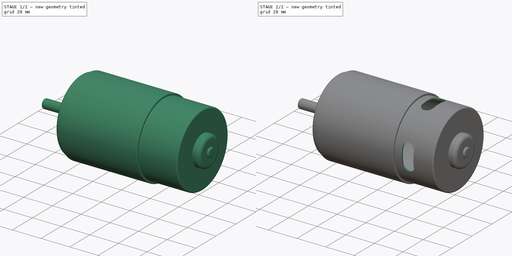
[diagram: build sequence overview — one tinted view per stage of 2, left to right]
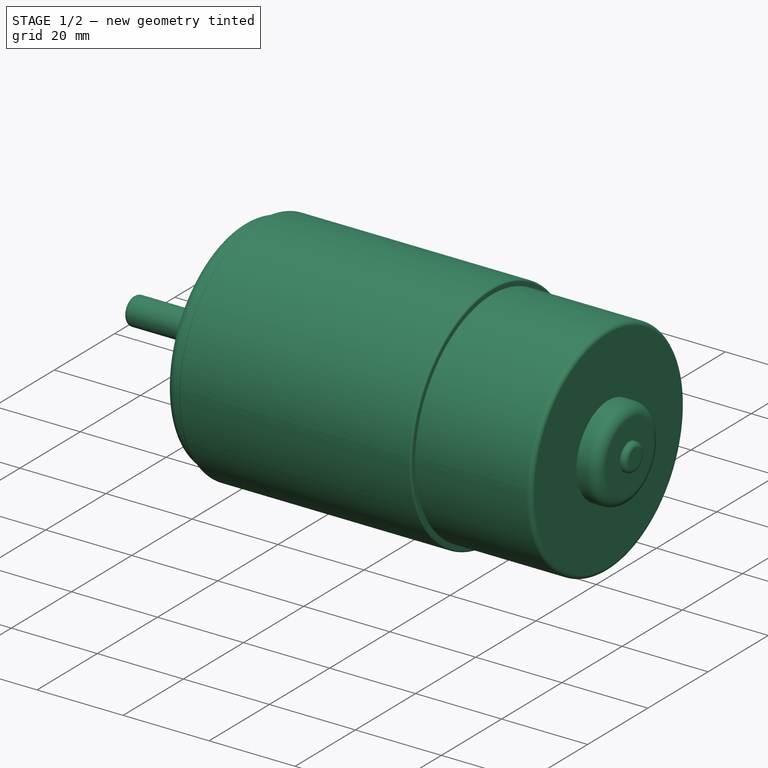
[diagram: stage 1 of 2 — iso view after this stage's code; geometry added in this stage tinted green]
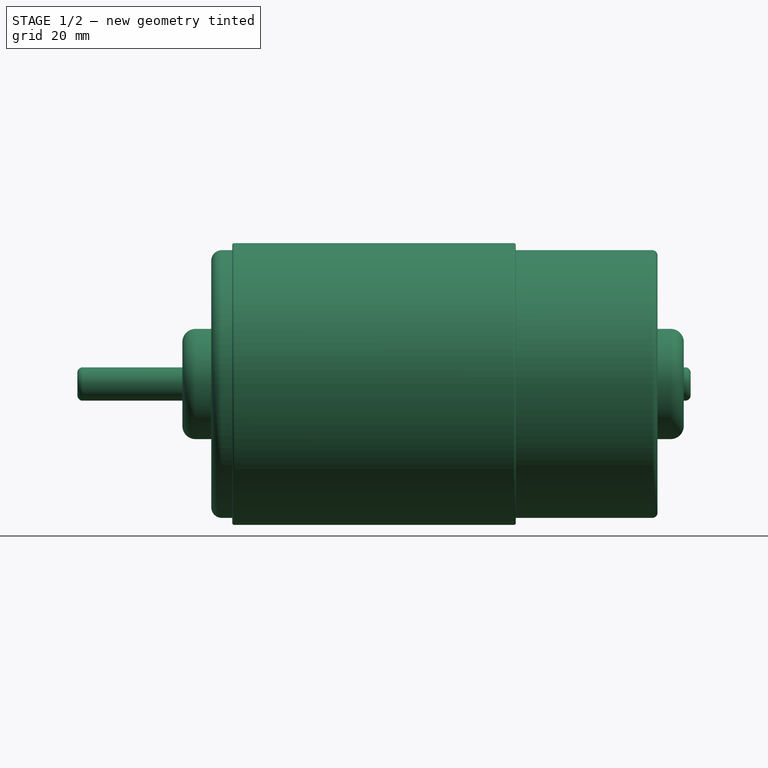
[diagram: stage 1 of 2 — front view after this stage's code; geometry added in this stage tinted green]
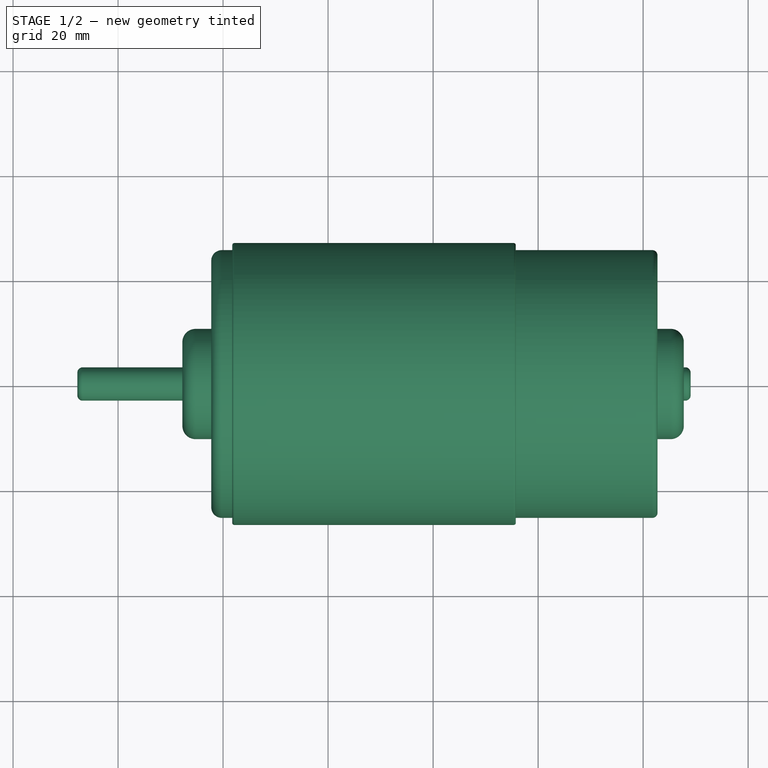
[diagram: stage 1 of 2 — top view after this stage's code; geometry added in this stage tinted green]
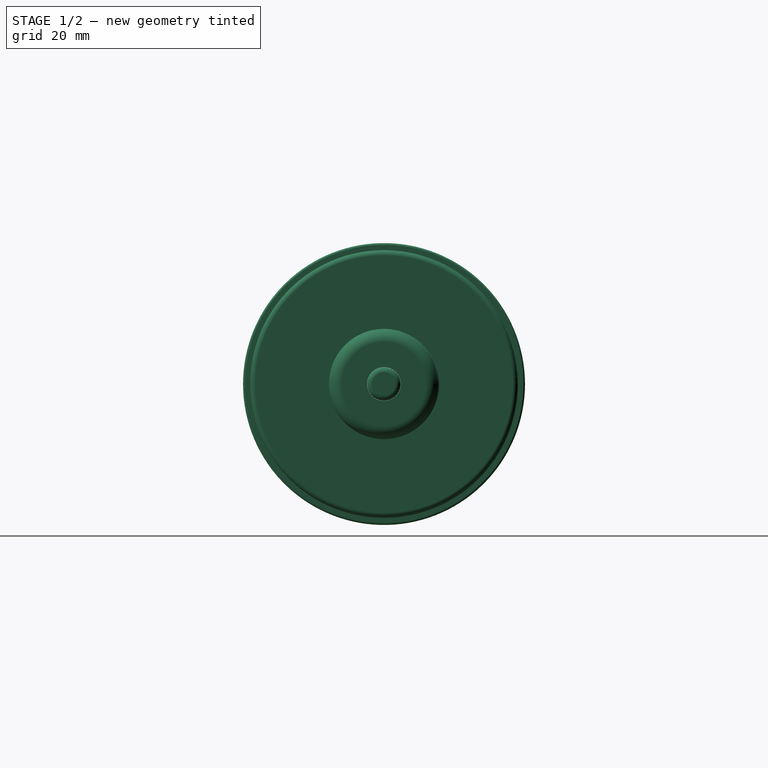
[diagram: stage 1 of 2 — right view after this stage's code; geometry added in this stage tinted green]
FCSTD DOCUMENT  (FreeCAD 0.22R37898 (Git))
Label: 997 DC motor
License: All rights reserved
LicenseURL: http://en.wikipedia.org/wiki/All_rights_reserved
objects: Sketcher::SketchObject×3, PartDesign::Revolution×2, PartDesign::Body×2, PartDesign::Pocket×1, PartDesign::PolarPattern×1
note: 12 computed .brp shape members not serialized (recipe doc carries the construction recipe); baked Part::Feature solids carry a one-line shape summary decoded from their .brp

FEATURE [Sketcher::SketchObject] Sketch003
  AttachmentSupport = -> [XY_Plane]
  FullyConstrained = true
  MapMode = 5
  sketch-geometry (28):
    g0: LineSegment StartX=-47.75 StartY=-3.2 StartZ=0 EndX=-47.75 EndY=-8 EndZ=0
    g1: LineSegment StartX=-45.25 StartY=-10.5 StartZ=0 EndX=-42.25 EndY=-10.5 EndZ=0
    g2: LineSegment StartX=-42.25 StartY=-10.5 StartZ=0 EndX=-42.25 EndY=-23.5 EndZ=0
    g3: LineSegment StartX=-40.25 StartY=-25.5 StartZ=0 EndX=-38.25 EndY=-25.5 EndZ=0
    g4: LineSegment StartX=-38.25 StartY=-25.5 StartZ=0 EndX=-38.25 EndY=-26.45 EndZ=0
    g5: LineSegment StartX=-37.85 StartY=-26.85 StartZ=0 EndX=15.35 EndY=-26.85 EndZ=0
    g6: LineSegment StartX=15.75 StartY=-26.45 StartZ=0 EndX=15.75 EndY=-25.5 EndZ=0
    g7: LineSegment StartX=15.75 StartY=-25.5 StartZ=0 EndX=41.75 EndY=-25.5 EndZ=0
    g8: LineSegment StartX=42.75 StartY=-24.5 StartZ=0 EndX=42.75 EndY=-10.5 EndZ=0
    g9: LineSegment StartX=42.75 StartY=-10.5 StartZ=0 EndX=45.25 EndY=-10.5 EndZ=0
    g10: LineSegment StartX=47.75 StartY=-8 StartZ=0 EndX=47.75 EndY=-3.2 EndZ=0
    g11: ArcOfCircle CenterX=-45.25 CenterY=-8 CenterZ=0 NormalX=0 NormalY=0 NormalZ=1 AngleXU=0 Radius=2.5 StartAngle=3.14159 EndAngle=4.71239
    g12: GeomPoint X=-47.75 Y=-10.5 Z=0
    g13: ArcOfCircle CenterX=-40.25 CenterY=-23.5 CenterZ=0 NormalX=0 NormalY=0 NormalZ=1 AngleXU=0 Radius=2 StartAngle=3.14159 EndAngle=4.71239
    g14: GeomPoint X=-42.25 Y=-25.5 Z=0
    g15: ArcOfCircle CenterX=41.75 CenterY=-24.5 CenterZ=0 NormalX=0 NormalY=0 NormalZ=1 AngleXU=0 Radius=1 StartAngle=4.71239 EndAngle=6.28319
    g16: GeomPoint X=42.75 Y=-25.5 Z=0
    g17: ArcOfCircle CenterX=45.25 CenterY=-8 CenterZ=0 NormalX=0 NormalY=0 NormalZ=1 AngleXU=0 Radius=2.5 StartAngle=4.71239 EndAngle=6.28319
    g18: GeomPoint X=47.75 Y=-10.5 Z=0
    g19: ArcOfCircle CenterX=15.35 CenterY=-26.45 CenterZ=0 NormalX=0 NormalY=0 NormalZ=1 AngleXU=0 Radius=0.4 StartAngle=4.71239 EndAngle=6.28319
    g20: GeomPoint X=15.75 Y=-26.85 Z=0
    g21: ArcOfCircle CenterX=-37.85 CenterY=-26.45 CenterZ=0 NormalX=0 NormalY=0 NormalZ=1 AngleXU=0 Radius=0.4 StartAngle=3.14159 EndAngle=4.71239
    g22: GeomPoint X=-38.25 Y=-26.85 Z=0
    g23: LineSegment StartX=-41.25 StartY=-3.2 StartZ=0 EndX=-47.75 EndY=-3.2 EndZ=0
    g24: LineSegment StartX=47.75 StartY=-3.2 StartZ=0 EndX=41.75 EndY=-3.2 EndZ=0
    g25: LineSegment StartX=-41.25 StartY=-24.5 StartZ=0 EndX=-41.25 EndY=-3.2 EndZ=0
    g26: LineSegment StartX=41.75 StartY=-3.2 StartZ=0 EndX=41.75 EndY=-24.5 EndZ=0
    g27: LineSegment StartX=41.75 StartY=-24.5 StartZ=0 EndX=-41.25 EndY=-24.5 EndZ=0
  constraints (72):
    c: Horizontal(g1)
    c: Coincident(g1,g2)
    c: Vertical(g2)
    c: Coincident(g3,g4)
    c: Vertical(g4)
    c: Horizontal(g5)
    c: Coincident(g6,g7)
    c: Horizontal(g7)
    c: Vertical(g8)
    c: Coincident(g8,g9)
    c: Horizontal(g9)
    c: Coincident(g10,g24)
    c: Coincident(g23,g0)
    c: Perpendicular(g2,g3)
    c: Perpendicular(g7,g6)
    c: DistanceX(g16,g18) = 5
    c: DistanceX(g14,g16) = 85
    c: DistanceX(g12,g1) = 5.5
    c: DistanceX(g14,g3) = 4
    c: DistanceX(g22,g20) = 54
    c: DistanceY(g10,g-1) = 3.2
    c: Symmetric(g10,g0,g-2)
    c: DistanceY(g8,g-1) = 10.5
    c: DistanceY(g16,g-1) = 25.5
    c: DistanceY(g20,g-1) = 26.85
    c: Horizontal(g3,g6)
    c: PointOnObject(g12,g0)
    c: PointOnObject(g12,g1)
    c: Tangent(g0,g11) = -1.5708
    c: Tangent(g1,g11) = -1.5708
    c: PointOnObject(g14,g2)
    c: PointOnObject(g14,g3)
    c: Tangent(g2,g13) = -1.5708
    c: Tangent(g3,g13) = -1.5708
    c: PointOnObject(g16,g7)
    c: PointOnObject(g16,g8)
    c: Tangent(g7,g15) = -1.5708
    c: Tangent(g8,g15) = -1.5708
    c: PointOnObject(g18,g9)
    c: PointOnObject(g18,g10)
    c: Tangent(g9,g17) = -1.5708
    c: Tangent(g10,g17) = -1.5708
    c: Radius(g17) = 2.5
    c: Equal(g17,g11)
    c: Equal(g0,g10)
    c: Radius(g13) = 2
    c: Radius(g15) = 1
    c: PointOnObject(g20,g5)
    c: PointOnObject(g20,g6)
    c: Tangent(g5,g19) = -1.5708
    c: Tangent(g6,g19) = -1.5708
    c: PointOnObject(g22,g4)
    c: PointOnObject(g22,g5)
    c: Tangent(g4,g21) = -1.5708
    c: Tangent(g5,g21) = -1.5708
    c: Equal(g21,g19)
    c: Radius(g19) = 0.4
    c: Coincident(g25,g23)
    c: Perpendicular(g10,g23)
    c: Coincident(g24,g26)
    c: Perpendicular(g10,g24)
    c: Perpendicular(g24,g0)
    c: Coincident(g27,g25)
    c: Coincident(g26,g27)
    c: Horizontal(g23)
    c: Perpendicular(g23,g25)
    c: DistanceX(g1,g25) = 1
    c: Perpendicular(g27,g26)
    c: DistanceX(g26,g8) = 1
    c: DistanceY(g7,g26) = 1
    c: Horizontal(g27)
    c: DistanceX(g0,g-1) = 47.75  'x1'
FEATURE [PartDesign::Revolution] Revolution
  Angle = 360
  Angle2 = 60
  Axis = (1,0,0)
  Base = (0,0,0)
  Profile = -> Sketch003
  ReferenceAxis = -> Sketch003 [H_Axis]
  Reversed = true
  Suppressed = false
  Type = 0
FEATURE [PartDesign::Body] Body
  AllowCompound = false
  Group = -> [Sketch003,Revolution,Sketch,Pocket,PolarPattern]
  Origin = -> Origin
  Tip = -> PolarPattern
FEATURE [Sketcher::SketchObject] Sketch004
  AttachmentSupport = -> [XY_Plane001]
  FullyConstrained = true
  MapMode = 5
  expr: Constraints[15] = <<Sketch003>>.Constraints.x1 + 20 mm
  sketch-geometry (6):
    g0: LineSegment StartX=-67.75 StartY=0 StartZ=0 EndX=49.05 EndY=0 EndZ=0
    g1: LineSegment StartX=48.05 StartY=3.175 StartZ=0 EndX=-66.75 EndY=3.175 EndZ=0
    g2: ArcOfCircle CenterX=-66.75 CenterY=2.175 CenterZ=0 NormalX=0 NormalY=0 NormalZ=1 AngleXU=0 Radius=1 StartAngle=1.5708 EndAngle=3.14159
    g3: LineSegment StartX=-67.75 StartY=2.175 StartZ=0 EndX=-67.75 EndY=0 EndZ=0
    g4: ArcOfCircle CenterX=48.05 CenterY=2.175 CenterZ=0 NormalX=0 NormalY=0 NormalZ=1 AngleXU=0 Radius=1 StartAngle=0 EndAngle=1.5708
    g5: LineSegment StartX=49.05 StartY=2.175 StartZ=0 EndX=49.05 EndY=0 EndZ=0
  constraints (16):
    c: PointOnObject(g0,g-1)
    c: PointOnObject(g0,g-1)
    c: Horizontal(g1)
    c: Tangent(g1,g2) = -1.5708
    c: Tangent(g2,g3) = -1.5708
    c: Coincident(g3,g0)
    c: Coincident(g5,g0)
    c: Vertical(g5)
    c: Vertical(g3)
    c: Tangent(g5,g4) = 1.5708
    c: Equal(g4,g2)
    c: Radius(g4) = 1
    c: Tangent(g4,g1) = -1.5708
    c: DistanceX(g0,g0) = 116.8
    c: DistanceY(g0,g1) = 3.175
    c: DistanceX(g0,g-1) = 67.75
FEATURE [PartDesign::Revolution] Revolution001
  Angle = 360
  Angle2 = 60
  Axis = (1,0,0)
  Base = (0,0,0)
  Profile = -> Sketch004
  ReferenceAxis = -> Sketch004 [H_Axis]
  Suppressed = false
  Type = 0
FEATURE [PartDesign::Body] Body001  label="Axis"
  AllowCompound = false
  Group = -> [Sketch004,Revolution001]
  Origin = -> Origin001
  Tip = -> Revolution001
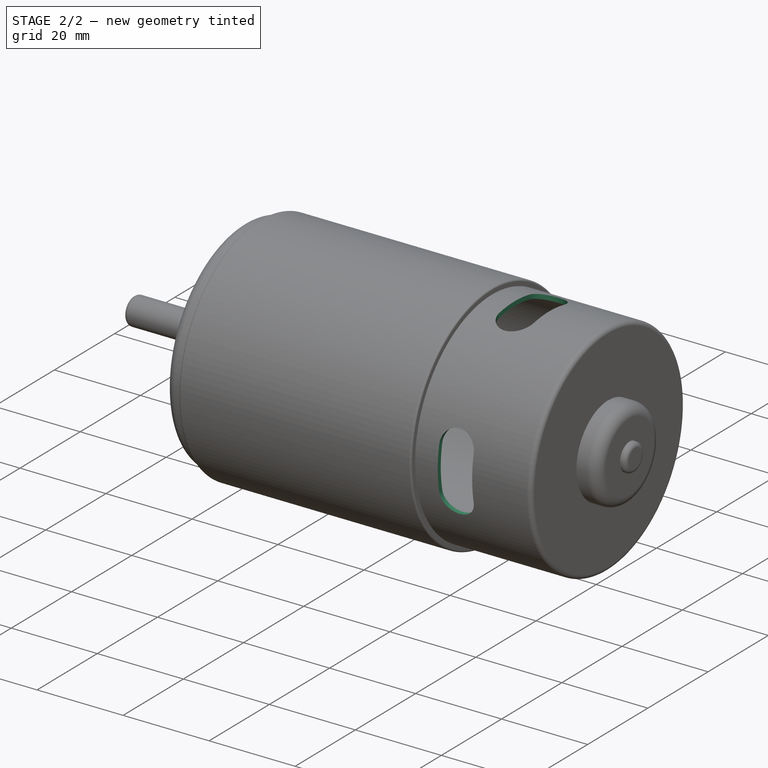
[diagram: stage 2 of 2 — iso view after this stage's code; geometry added in this stage tinted green]
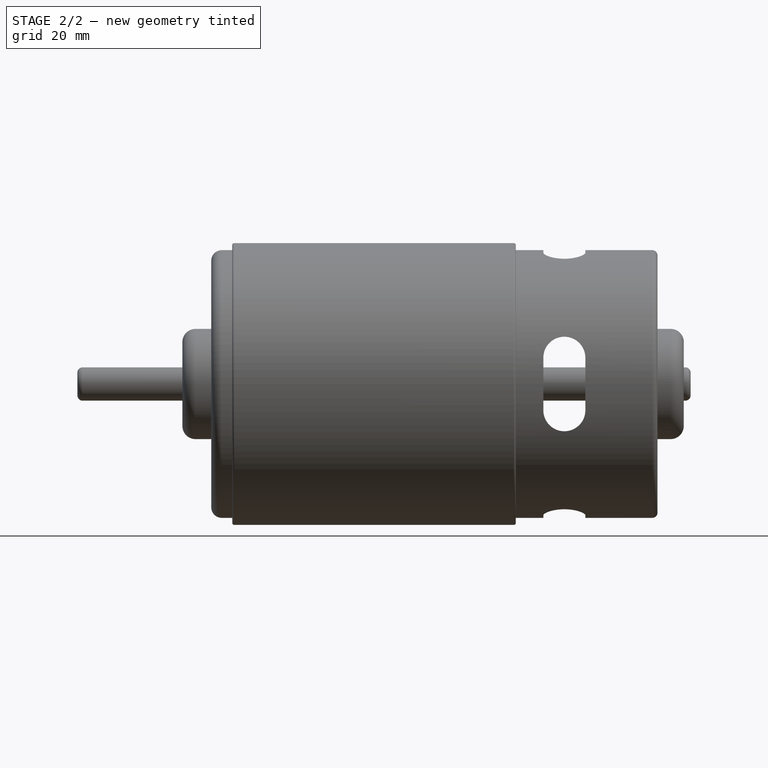
[diagram: stage 2 of 2 — front view after this stage's code; geometry added in this stage tinted green]
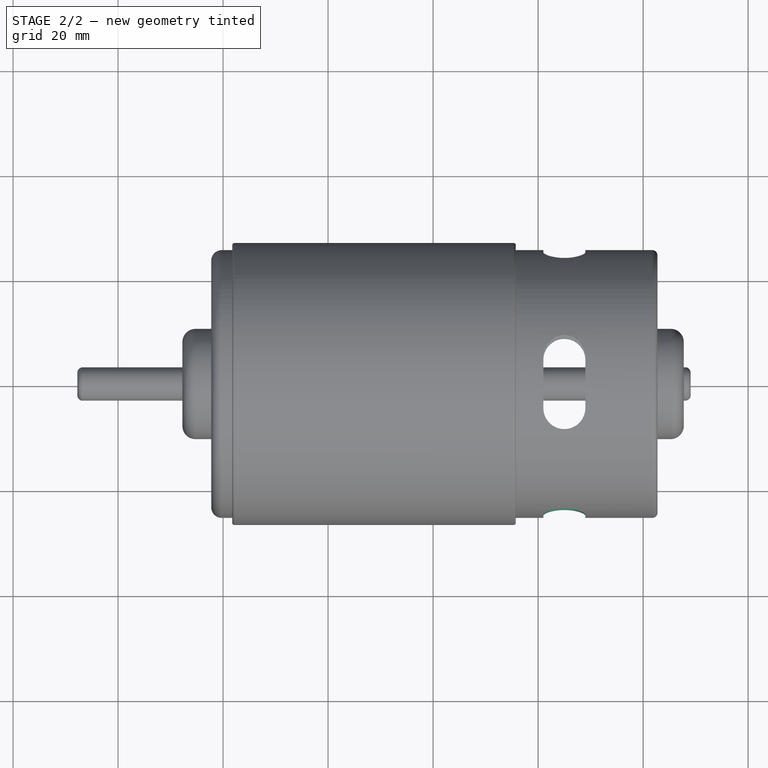
[diagram: stage 2 of 2 — top view after this stage's code; geometry added in this stage tinted green]
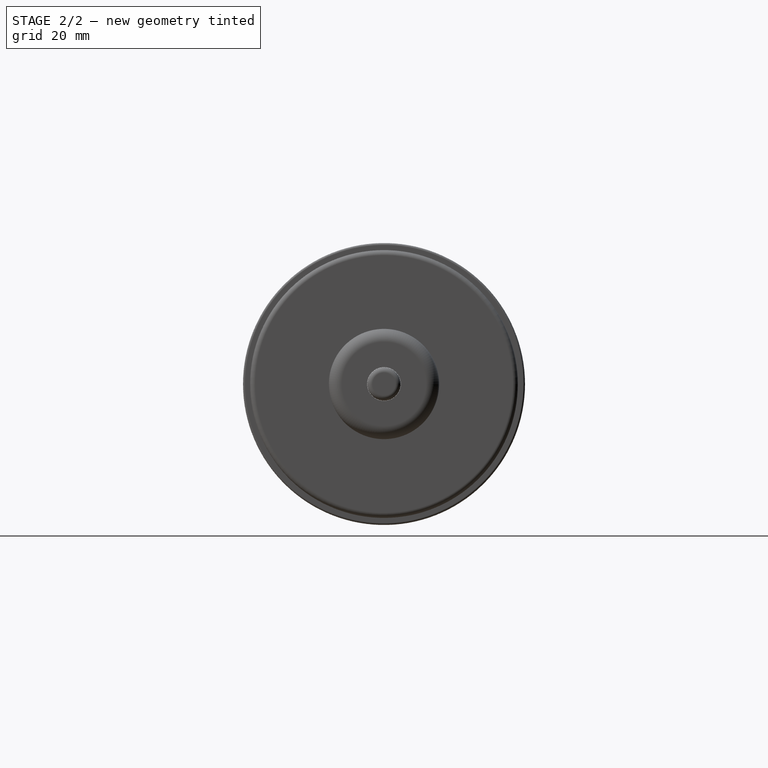
[diagram: stage 2 of 2 — right view after this stage's code; geometry added in this stage tinted green]
FEATURE [Sketcher::SketchObject] Sketch
  AttachmentSupport = -> [XZ_Plane]
  FullyConstrained = true
  MapMode = 5
  Placement = pos=(0,0,0) rot=(1,0,0;1.5708rad)
  sketch-geometry (4):
    g0: ArcOfCircle CenterX=25 CenterY=5 CenterZ=0 NormalX=0 NormalY=0 NormalZ=1 AngleXU=0 Radius=4 StartAngle=2e-16 EndAngle=3.14159
    g1: ArcOfCircle CenterX=25 CenterY=-5 CenterZ=0 NormalX=0 NormalY=0 NormalZ=1 AngleXU=0 Radius=4 StartAngle=3.14159 EndAngle=6.28319
    g2: LineSegment StartX=29 StartY=5 StartZ=0 EndX=29 EndY=-5 EndZ=0
    g3: LineSegment StartX=21 StartY=5 StartZ=0 EndX=21 EndY=-5 EndZ=0
  constraints (9):
    c: Tangent(g0,g2) = 1.5708
    c: Tangent(g0,g3) = -1.5708
    c: Tangent(g1,g2) = 1.5708
    c: Tangent(g1,g3) = -1.5708
    c: Equal(g0,g1)
    c: Radius(g0) = 4
    c: Symmetric(g1,g0,g-1)
    c: DistanceY(g2,g2) = 10
    c: DistanceX(g-1,g0) = 25
FEATURE [PartDesign::Pocket] Pocket
  BaseFeature = -> Revolution
  Direction = (0,1,-2e-16)
  Length = 5
  Length2 = 5
  Midplane = true
  Profile = -> Sketch
  ReferenceAxis = -> Sketch [N_Axis]
  Suppressed = false
  Type = 1
FEATURE [PartDesign::PolarPattern] PolarPattern
  Angle = 90
  Axis = -> Sketch [H_Axis]
  BaseFeature = -> Pocket
  Mode = 0
  Occurrences = 2
  Offset = 120
  Originals = -> [Pocket]
  Suppressed = false
  TransformMode = 0
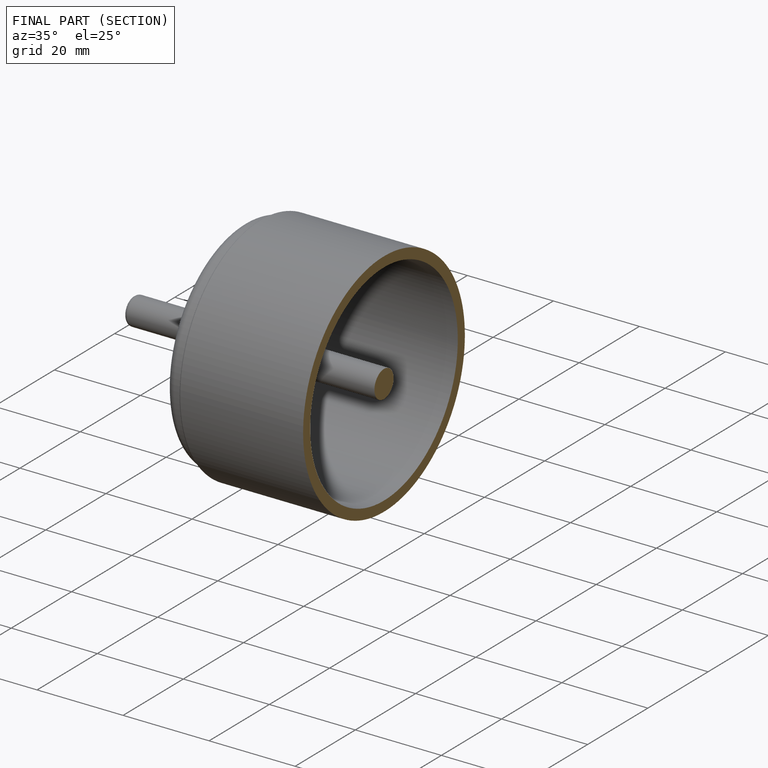
[diagram: finished part — half-section view (interior)]
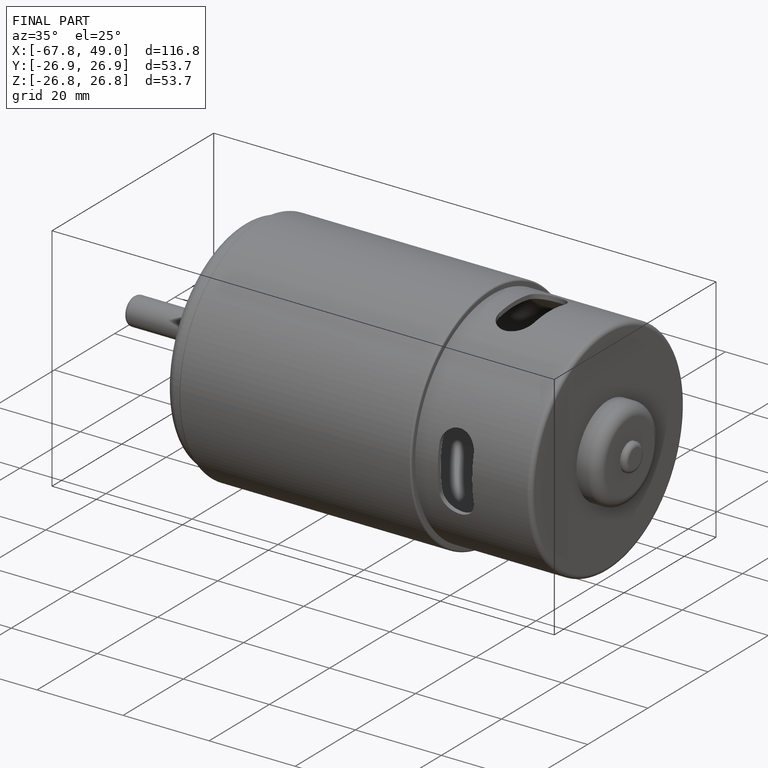
[diagram: finished part — iso view with bounding-box wireframe]
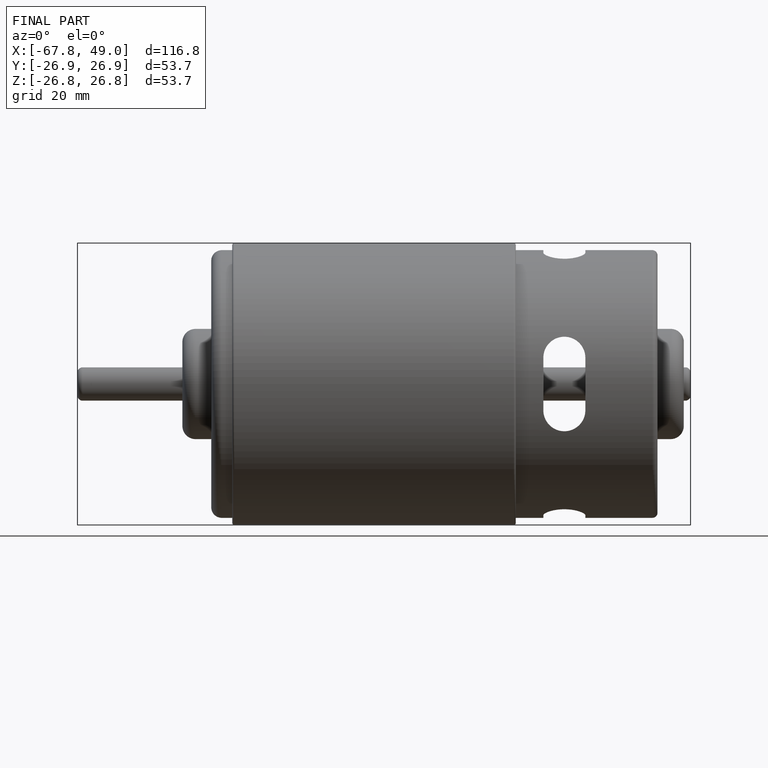
[diagram: finished part — front view with bounding-box wireframe]
